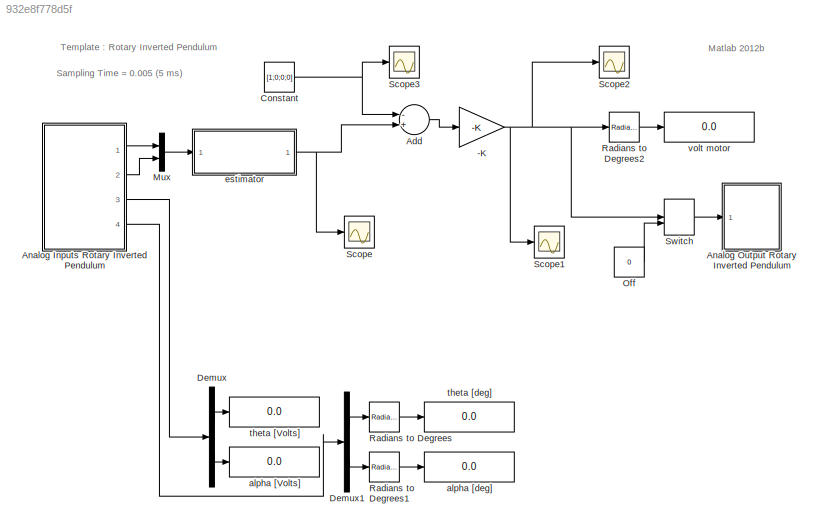
MODEL slx_932e8f778d5f
KIND model
BLOCK [Gain] -K
  Gain = -K
  Multiplication = Matrix(K*u) (u vector)
  OutDataTypeStr = Inherit: Inherit via internal rule
  ParamDataTypeStr = Inherit: Inherit via internal rule
  SaturateOnIntegerOverflow = off
BLOCK [Sum] Add
  InputSameDT = off
  Inputs = -+
  OutDataTypeStr = Inherit: Inherit via internal rule
  Ports = [2, 1]
  SaturateOnIntegerOverflow = off
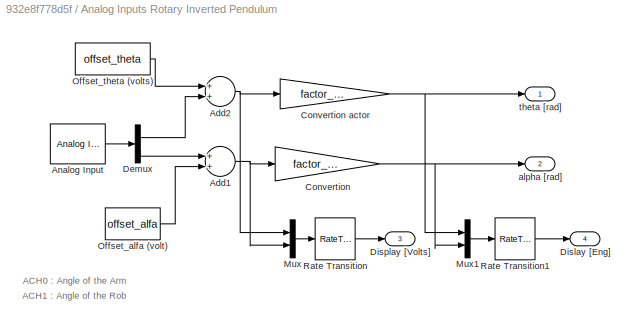
BLOCK [SubSystem] Analog Inputs Rotary Inverted Pendulum
  FunctionWithSeparateData = off
  MaskHideContents = off
  MinAlgLoopOccurrences = off
  Opaque = off
  Ports = [0, 4]
  PropExecContextOutsideSubsystem = off
  RTWSystemCode = Auto
  RequestExecContextInheritance = off
BLOCK [Sum] Analog Inputs Rotary Inverted Pendulum/Add1
  InputSameDT = off
  OutDataTypeStr = Inherit: Inherit via internal rule
  Ports = [2, 1]
  SaturateOnIntegerOverflow = off
BLOCK [Sum] Analog Inputs Rotary Inverted Pendulum/Add2
  InputSameDT = off
  OutDataTypeStr = Inherit: Inherit via internal rule
  Ports = [2, 1]
  SaturateOnIntegerOverflow = off
BLOCK [Reference] Analog Inputs Rotary Inverted Pendulum/Analog Input  REF=rtwinlib/Analog Input
  AttributesFormatString = National Instruments\nPCI-6014 [1h]
  Channels = [1 2]
  DataType = 1
  DrvAddress = 1
  DrvName = National_Instruments/PCI-6014
  DrvOptions = [1 0 0 0 0 0]
  MaxMissedTicks = 10
  Ports = [0, 1]
  RangeMode = 1
  SampleTime = 0.005
  ShowMissedTicks = off
  SourceBlock = rtwinlib/Analog Input
  SourceType = RTWin Analog Input
  VoltRange = 1
  YieldWhenWaiting = off
BLOCK [Gain] Analog Inputs Rotary Inverted Pendulum/Convertion 
  Gain = factor_alfa
  OutDataTypeStr = Inherit: Inherit via internal rule
  ParamDataTypeStr = Inherit: Inherit via internal rule
  SaturateOnIntegerOverflow = off
BLOCK [Gain] Analog Inputs Rotary Inverted Pendulum/Convertion actor
  Gain = factor_theta
  OutDataTypeStr = Inherit: Inherit via internal rule
  ParamDataTypeStr = Inherit: Inherit via internal rule
  SaturateOnIntegerOverflow = off
BLOCK [Demux] Analog Inputs Rotary Inverted Pendulum/Demux
  DisplayOption = bar
  Outputs = 2
  Ports = [1, 2]
BLOCK [Outport] Analog Inputs Rotary Inverted Pendulum/Dislay [Eng]
  IconDisplay = Port number
  Port = 4
BLOCK [Outport] Analog Inputs Rotary Inverted Pendulum/Display [Volts]
  IconDisplay = Port number
  Port = 3
BLOCK [Mux] Analog Inputs Rotary Inverted Pendulum/Mux
  DisplayOption = bar
  Inputs = 2
  Ports = [2, 1]
BLOCK [Mux] Analog Inputs Rotary Inverted Pendulum/Mux1
  DisplayOption = bar
  Inputs = 2
  Ports = [2, 1]
BLOCK [Constant] Analog Inputs Rotary Inverted Pendulum/Offset_alfa (volt)
  Value = offset_alfa
BLOCK [Constant] Analog Inputs Rotary Inverted Pendulum/Offset_theta (volts)
  Value = offset_theta
BLOCK [RateTransition] Analog Inputs Rotary Inverted Pendulum/Rate Transition
  OutPortSampleTime = 0.25
BLOCK [RateTransition] Analog Inputs Rotary Inverted Pendulum/Rate Transition1
  OutPortSampleTime = 0.25
BLOCK [Outport] Analog Inputs Rotary Inverted Pendulum/alpha [rad]
  IconDisplay = Port number
  Port = 2
BLOCK [Outport] Analog Inputs Rotary Inverted Pendulum/theta [rad]
  IconDisplay = Port number
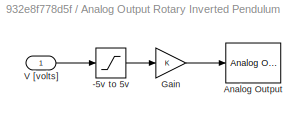
BLOCK [SubSystem] Analog Output Rotary Inverted Pendulum
  FunctionWithSeparateData = off
  MaskHideContents = off
  MinAlgLoopOccurrences = off
  Opaque = off
  Ports = [1]
  PropExecContextOutsideSubsystem = off
  RTWSystemCode = Auto
  RequestExecContextInheritance = off
BLOCK [Saturate] Analog Output Rotary Inverted Pendulum/-5v to 5v
  InputPortMap = u0
  LowerLimit = -5
  Ports = [1, 1]
  UpperLimit = 5
BLOCK [Reference] Analog Output Rotary Inverted Pendulum/Analog Output  REF=rtwinlib/Analog Output
  AttributesFormatString = National Instruments\nPCI-6014 [1h]
  Channels = 1
  DrvAddress = 1
  DrvName = National_Instruments/PCI-6014
  DrvOptions = [1 0 0 0 0 0]
  FinalValue = 0
  InitialValue = 0
  MaxMissedTicks = 10
  Ports = [1]
  RangeMode = 1
  SampleTime = 0.005
  ShowMissedTicks = off
  SourceBlock = rtwinlib/Analog Output
  SourceType = RTWin Analog Output
  VoltRange = 1
  YieldWhenWaiting = off
BLOCK [Gain] Analog Output Rotary Inverted Pendulum/Gain
  OutDataTypeStr = Inherit: Inherit via internal rule
  ParamDataTypeStr = Inherit: Inherit via internal rule
  SaturateOnIntegerOverflow = off
BLOCK [Inport] Analog Output Rotary Inverted Pendulum/V [volts]
  IconDisplay = Port number
BLOCK [Constant] Constant
  SampleTime = Ts
  Value = [1;0;0;0]
BLOCK [Demux] Demux
  DisplayOption = bar
  Outputs = 2
  Ports = [1, 2]
BLOCK [Demux] Demux1
  DisplayOption = bar
  Outputs = 2
  Ports = [1, 2]
BLOCK [Mux] Mux
  DisplayOption = bar
  Inputs = 2
  Ports = [2, 1]
BLOCK [Constant] Off
  Value = 0
BLOCK [Reference] Radians to Degrees  REF=simulink_extras/Transformations/Radians
to Degrees
  Ports = [1, 1]
  SourceBlock = simulink_extras/Transformations/Radians\nto Degrees
  SourceType = RadiansToDegrees
BLOCK [Reference] Radians to Degrees1  REF=simulink_extras/Transformations/Radians
to Degrees
  Ports = [1, 1]
  SourceBlock = simulink_extras/Transformations/Radians\nto Degrees
  SourceType = RadiansToDegrees
BLOCK [Reference] Radians to Degrees2  REF=simulink_extras/Transformations/Radians
to Degrees
  Ports = [1, 1]
  SourceBlock = simulink_extras/Transformations/Radians\nto Degrees
  SourceType = RadiansToDegrees
BLOCK [Scope] Scope
  DataFormat = StructureWithTime
  Floating = off
  NumInputPorts = 1
  Ports = [1]
  SampleTime = 0
  SaveName = estimated_state
  SaveToWorkspace = on
  ShowLegends = off
BLOCK [Scope] Scope1
  DataFormat = StructureWithTime
  Floating = off
  NumInputPorts = 1
  Ports = [1]
  SampleTime = 0
  SaveName = motor_input
  SaveToWorkspace = on
  ShowLegends = off
BLOCK [Scope] Scope2
  DataFormat = StructureWithTime
  Floating = off
  NumInputPorts = 1
  Ports = [1]
  SampleTime = 0
  SaveName = ScopeData2
  ShowLegends = off
BLOCK [Scope] Scope3
  DataFormat = StructureWithTime
  Floating = off
  NumInputPorts = 1
  Ports = [1]
  SampleTime = 0
  SaveName = desired_state
  SaveToWorkspace = on
  ShowLegends = off
BLOCK [ManualSwitch] Switch  
BLOCK [Display] alpha [Volts]
  Decimation = 1
  Lockdown = off
  Ports = [1]
  SampleTime = 0.25
BLOCK [Display] alpha [deg]
  Decimation = 1
  Lockdown = off
  Ports = [1]
  SampleTime = 0.25
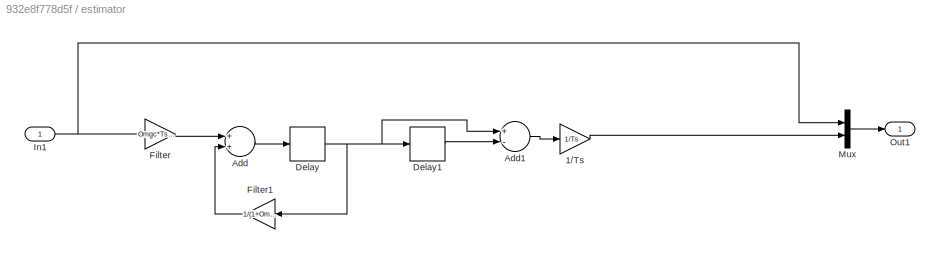
BLOCK [SubSystem] estimator
  FunctionWithSeparateData = off
  MaskHideContents = off
  MinAlgLoopOccurrences = off
  Opaque = off
  Ports = [1, 1]
  PropExecContextOutsideSubsystem = off
  RTWSystemCode = Auto
  RequestExecContextInheritance = off
BLOCK [Gain] estimator/1//Ts
  Gain = 1/Ts
  OutDataTypeStr = Inherit: Inherit via internal rule
  ParamDataTypeStr = Inherit: Inherit via internal rule
  SaturateOnIntegerOverflow = off
BLOCK [Sum] estimator/Add
  InputSameDT = off
  OutDataTypeStr = Inherit: Inherit via internal rule
  Ports = [2, 1]
  SaturateOnIntegerOverflow = off
BLOCK [Sum] estimator/Add1
  InputSameDT = off
  Inputs = +-
  OutDataTypeStr = Inherit: Inherit via internal rule
  Ports = [2, 1]
  SaturateOnIntegerOverflow = off
BLOCK [Delay] estimator/Delay
  DelayLength = 1
  InitialCondition = 0
  InputPortMap = u0
  Ports = [1, 1]
BLOCK [Delay] estimator/Delay1
  DelayLength = 1
  InitialCondition = 0
  InputPortMap = u0
  Ports = [1, 1]
BLOCK [Gain] estimator/Filter
  Gain = Omgc*Ts/(1+Omgc*Ts)
  OutDataTypeStr = Inherit: Inherit via internal rule
  ParamDataTypeStr = Inherit: Inherit via internal rule
  SaturateOnIntegerOverflow = off
BLOCK [Gain] estimator/Filter1
  Gain = 1/(1+Omgc*Ts)
  OutDataTypeStr = Inherit: Inherit via internal rule
  ParamDataTypeStr = Inherit: Inherit via internal rule
  SaturateOnIntegerOverflow = off
BLOCK [Inport] estimator/In1
  IconDisplay = Port number
BLOCK [Mux] estimator/Mux
  DisplayOption = bar
  Inputs = 2
  Ports = [2, 1]
BLOCK [Outport] estimator/Out1
  IconDisplay = Port number
BLOCK [Display] theta [Volts]
  Decimation = 1
  Lockdown = off
  Ports = [1]
  SampleTime = 0.25
BLOCK [Display] theta [deg]
  Decimation = 1
  Lockdown = off
  Ports = [1]
  SampleTime = 0.25
BLOCK [Display] volt motor
  Decimation = 1
  Lockdown = off
  Ports = [1]
  SampleTime = 0.25
ANNOTATION (root): Matlab 2012b
ANNOTATION (root): Sampling Time = 0.005 (5 ms)
ANNOTATION (root): Template : Rotary Inverted Pendulum
ANNOTATION Analog Inputs Rotary Inverted Pendulum: ACH0 : Angle of the Arm
ANNOTATION Analog Inputs Rotary Inverted Pendulum: ACH1 : Angle of the Rob
NET -K:1 -> Radians to Degrees2:1, Scope1:1, Scope2:1, Switch  :1
LINE Add:1 -> -K:1
NET Analog Inputs Rotary Inverted Pendulum/Add1:1 -> Analog Inputs Rotary Inverted Pendulum/Convertion :1, Analog Inputs Rotary Inverted Pendulum/Mux:2
NET Analog Inputs Rotary Inverted Pendulum/Add2:1 -> Analog Inputs Rotary Inverted Pendulum/Convertion actor:1, Analog Inputs Rotary Inverted Pendulum/Mux:1
LINE Analog Inputs Rotary Inverted Pendulum/Analog Input:1 -> Analog Inputs Rotary Inverted Pendulum/Demux:1
NET Analog Inputs Rotary Inverted Pendulum/Convertion :1 -> Analog Inputs Rotary Inverted Pendulum/Mux1:2, Analog Inputs Rotary Inverted Pendulum/alpha [rad]:1
NET Analog Inputs Rotary Inverted Pendulum/Convertion actor:1 -> Analog Inputs Rotary Inverted Pendulum/Mux1:1, Analog Inputs Rotary Inverted Pendulum/theta [rad]:1
LINE Analog Inputs Rotary Inverted Pendulum/Demux:1 -> Analog Inputs Rotary Inverted Pendulum/Add2:2
LINE Analog Inputs Rotary Inverted Pendulum/Demux:2 -> Analog Inputs Rotary Inverted Pendulum/Add1:1
LINE Analog Inputs Rotary Inverted Pendulum/Mux1:1 -> Analog Inputs Rotary Inverted Pendulum/Rate Transition1:1
LINE Analog Inputs Rotary Inverted Pendulum/Mux:1 -> Analog Inputs Rotary Inverted Pendulum/Rate Transition:1
LINE Analog Inputs Rotary Inverted Pendulum/Offset_alfa (volt):1 -> Analog Inputs Rotary Inverted Pendulum/Add1:2
LINE Analog Inputs Rotary Inverted Pendulum/Offset_theta (volts):1 -> Analog Inputs Rotary Inverted Pendulum/Add2:1
LINE Analog Inputs Rotary Inverted Pendulum/Rate Transition1:1 -> Analog Inputs Rotary Inverted Pendulum/Dislay [Eng]:1
LINE Analog Inputs Rotary Inverted Pendulum/Rate Transition:1 -> Analog Inputs Rotary Inverted Pendulum/Display [Volts]:1
LINE Analog Inputs Rotary Inverted Pendulum:1 -> Mux:1
LINE Analog Inputs Rotary Inverted Pendulum:2 -> Mux:2
LINE Analog Inputs Rotary Inverted Pendulum:3 -> Demux:1
LINE Analog Inputs Rotary Inverted Pendulum:4 -> Demux1:1
LINE Analog Output Rotary Inverted Pendulum/-5v to 5v:1 -> Analog Output Rotary Inverted Pendulum/Gain:1
LINE Analog Output Rotary Inverted Pendulum/Gain:1 -> Analog Output Rotary Inverted Pendulum/Analog Output:1
LINE Analog Output Rotary Inverted Pendulum/V [volts]:1 -> Analog Output Rotary Inverted Pendulum/-5v to 5v:1
NET Constant:1 -> Add:1, Scope3:1
LINE Demux1:1 -> Radians to Degrees:1
LINE Demux1:2 -> Radians to Degrees1:1
LINE Demux:1 -> theta [Volts]:1
LINE Demux:2 -> alpha [Volts]:1
LINE Mux:1 -> estimator:1
LINE Off:1 -> Switch  :2
LINE Radians to Degrees1:1 -> alpha [deg]:1
LINE Radians to Degrees2:1 -> volt motor:1
LINE Radians to Degrees:1 -> theta [deg]:1
LINE Switch  :1 -> Analog Output Rotary Inverted Pendulum:1
LINE estimator/1//Ts:1 -> estimator/Mux:2
LINE estimator/Add1:1 -> estimator/1//Ts:1
LINE estimator/Add:1 -> estimator/Delay:1
LINE estimator/Delay1:1 -> estimator/Add1:2
NET estimator/Delay:1 -> estimator/Add1:1, estimator/Delay1:1, estimator/Filter1:1
LINE estimator/Filter1:1 -> estimator/Add:2
LINE estimator/Filter:1 -> estimator/Add:1
NET estimator/In1:1 -> estimator/Filter:1, estimator/Mux:1
LINE estimator/Mux:1 -> estimator/Out1:1
NET estimator:1 -> Add:2, Scope:1
note: NET lines group one-source signal fan-out (src -> all destinations, sorted); 1:1 wires keep LINE
